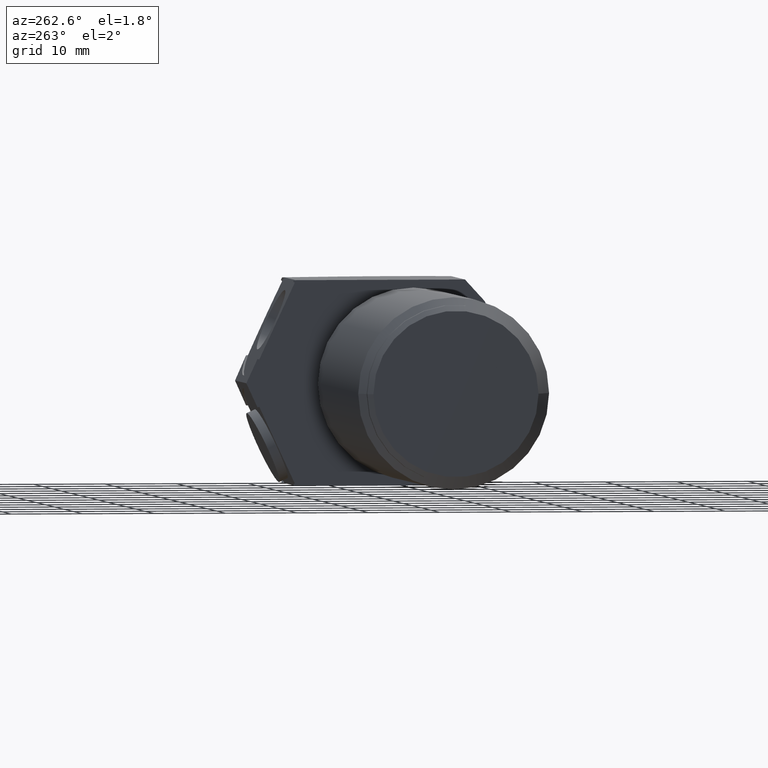
[diagram: clean part render]
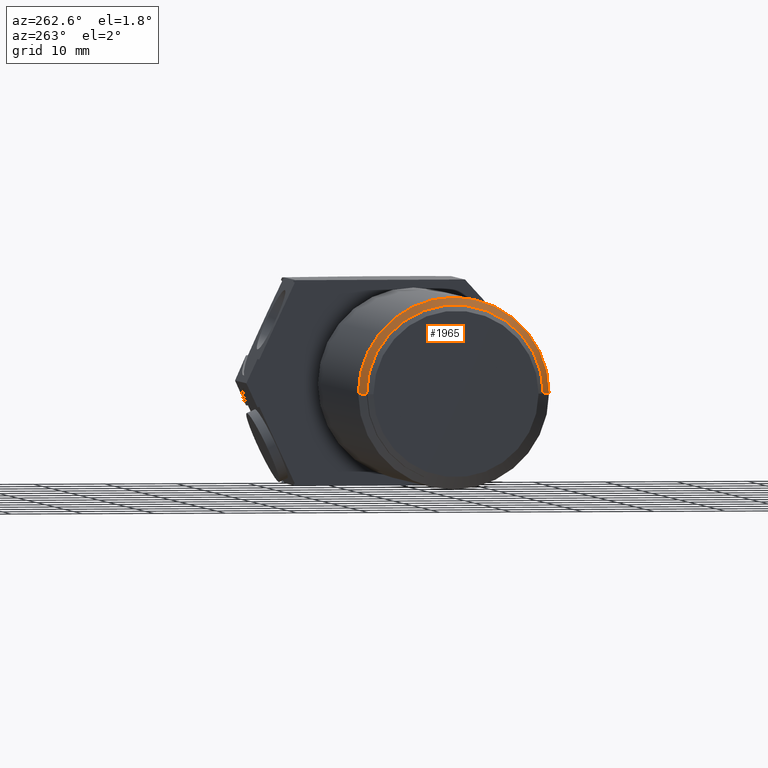
[diagram: same view with one face highlighted and labeled with its STEP entity id]
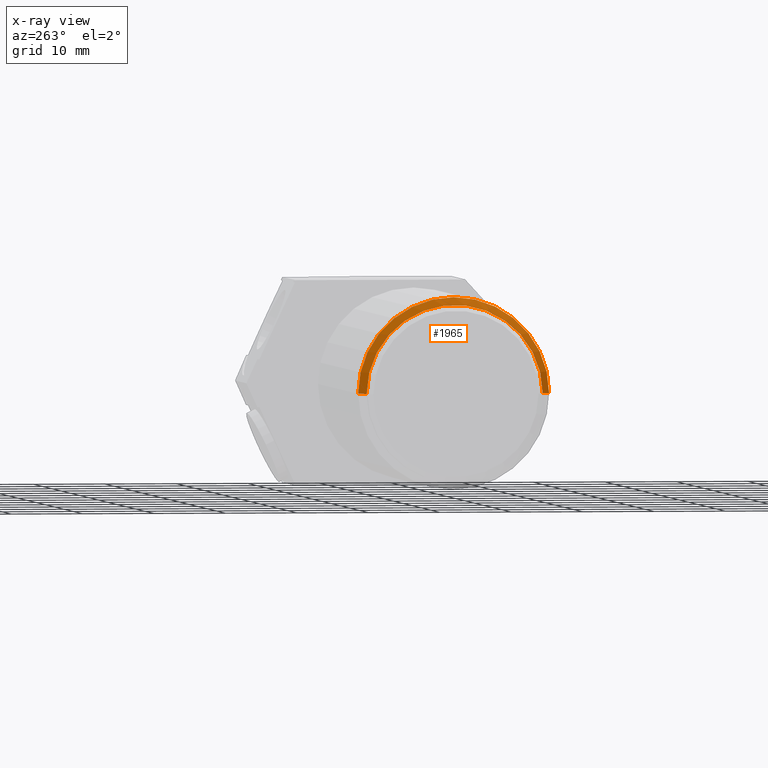
[diagram: x-ray of the same camera — body ghosted, the highlighted face saturated]
A machine part, auxiliary view. The second image highlights one B-rep face of the part: STEP entity #1965.
The next image is the same camera in x-ray: the body ghosted, the highlighted face saturated — about 0% of this face is hidden behind the body in this view.
In plain terms, the highlighted conical surface has half-angle 45 deg.
Its self-contained STEP definition (entity closure, byte-faithful):
#457=CARTESIAN_POINT('',(-1.899E0,-1.87E-1,0.E0));
#458=DIRECTION('',(1.E0,0.E0,0.E0));
#459=DIRECTION('',(0.E0,0.E0,1.E0));
#460=AXIS2_PLACEMENT_3D('',#457,#458,#459);
#465=DIRECTION('',(7.071067811865E-1,-7.071067811866E-1,0.E0));
#466=VECTOR('',#465,5.798275605730E-2);
#467=CARTESIAN_POINT('',(-1.94E0,-6.72E-1,0.E0));
#468=LINE('',#467,#466);
#472=CARTESIAN_POINT('',(-1.94E0,-1.87E-1,0.E0));
#473=DIRECTION('',(1.E0,0.E0,0.E0));
#474=DIRECTION('',(0.E0,1.E0,0.E0));
#475=AXIS2_PLACEMENT_3D('',#472,#473,#474);
#480=DIRECTION('',(7.071067811865E-1,7.071067811866E-1,0.E0));
#481=VECTOR('',#480,5.798275605730E-2);
#482=CARTESIAN_POINT('',(-1.94E0,2.98E-1,0.E0));
#483=LINE('',#482,#481);
#487=CARTESIAN_POINT('',(-1.899E0,-1.87E-1,0.E0));
#488=DIRECTION('',(1.E0,0.E0,0.E0));
#489=DIRECTION('',(0.E0,1.E0,0.E0));
#490=AXIS2_PLACEMENT_3D('',#487,#488,#489);
#1527=CARTESIAN_POINT('',(-1.899E0,-1.87E-1,5.26E-1));
#1529=VERTEX_POINT('',#1527);
#1530=CARTESIAN_POINT('',(-1.94E0,-6.72E-1,0.E0));
#1531=VERTEX_POINT('',#1530);
#1532=CARTESIAN_POINT('',(-1.94E0,2.98E-1,0.E0));
#1533=VERTEX_POINT('',#1532);
#1594=CARTESIAN_POINT('',(-1.899E0,-7.13E-1,0.E0));
#1595=VERTEX_POINT('',#1594);
#1596=CARTESIAN_POINT('',(-1.899E0,3.39E-1,0.E0));
#1597=VERTEX_POINT('',#1596);
#1950=CARTESIAN_POINT('',(-1.9195E0,-1.87E-1,0.E0));
#1951=DIRECTION('',(1.E0,0.E0,0.E0));
#1952=DIRECTION('',(0.E0,-1.E0,0.E0));
#1953=AXIS2_PLACEMENT_3D('',#1950,#1951,#1952);
#1954=CONICAL_SURFACE('',#1953,5.055E-1,4.5E1);
#1955=ORIENTED_EDGE('',*,*,#1910,.T.);
#1957=ORIENTED_EDGE('',*,*,#1956,.F.);
#1959=ORIENTED_EDGE('',*,*,#1958,.F.);
#1961=ORIENTED_EDGE('',*,*,#1960,.T.);
#1962=ORIENTED_EDGE('',*,*,#1930,.T.);
#1963=EDGE_LOOP('',(#1955,#1957,#1959,#1961,#1962));
#1964=FACE_OUTER_BOUND('',#1963,.F.);
#1965=ADVANCED_FACE('',(#1964),#1954,.T.);
#461=CIRCLE('',#460,5.26E-1);
#476=CIRCLE('',#475,4.85E-1);
#491=CIRCLE('',#490,5.26E-1);
#1910=EDGE_CURVE('',#1529,#1595,#461,.T.);
#1930=EDGE_CURVE('',#1597,#1529,#491,.T.);
#1956=EDGE_CURVE('',#1531,#1595,#468,.T.);
#1958=EDGE_CURVE('',#1533,#1531,#476,.T.);
#1960=EDGE_CURVE('',#1533,#1597,#483,.T.);